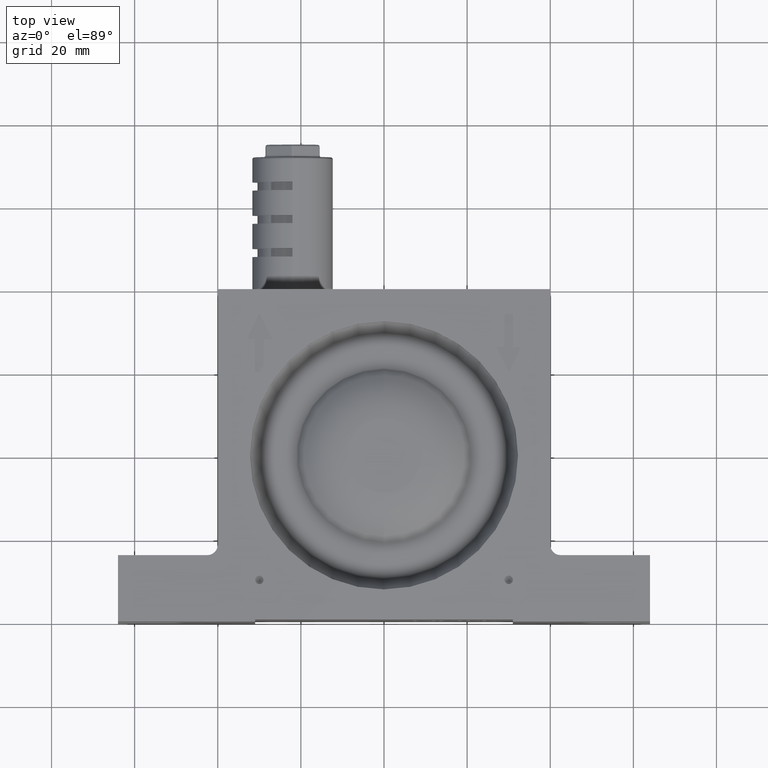
[diagram: clean part render]
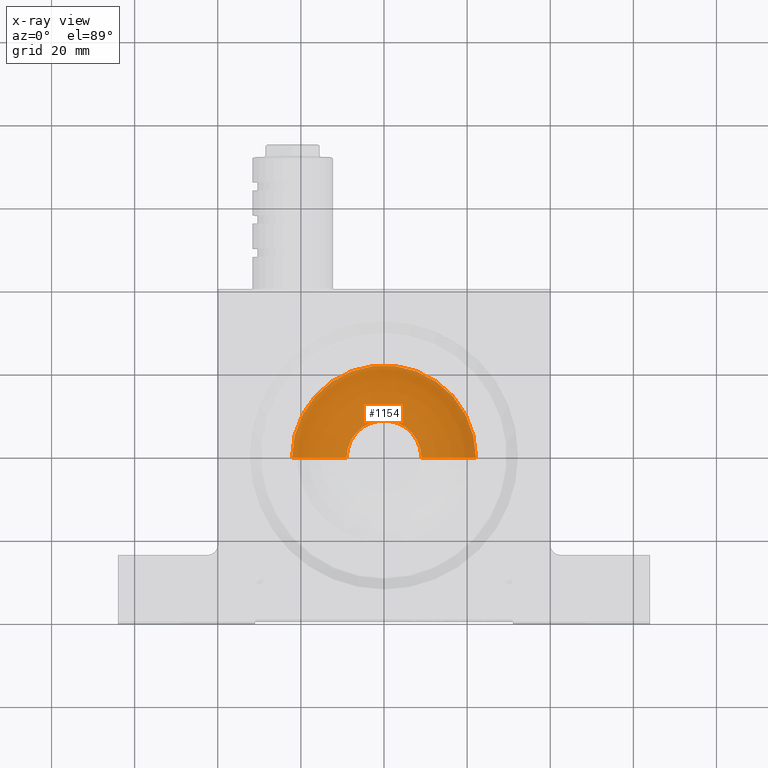
[diagram: x-ray — body ghosted, one internal face saturated and labeled with its STEP entity id]
A machine part, top view, then the same camera in x-ray: the body is ghosted and one INTERNAL B-rep face — a face not visible from any outside direction — is saturated and labeled: STEP entity #1154.
In plain terms, the highlighted toroidal blend (fillet) surface has major radius 9 mm and minor (blend) radius 16.5 mm.
Its self-contained STEP definition (entity closure, byte-faithful):
#1048 = CIRCLE ( 'NONE', #6326, 9.000000000000000000 ) ;
#1134 = CIRCLE ( 'NONE', #7056, 16.50000000000000000 ) ;
#1154 = ADVANCED_FACE ( 'NONE', ( #2869 ), #5288, .F. ) ;
#1425 = DIRECTION ( 'NONE',  ( -1.224646799147353200E-016, 1.000000000000000000, 0.0000000000000000000 ) ) ;
#1668 = DIRECTION ( 'NONE',  ( 0.0000000000000000000, 0.0000000000000000000, -1.000000000000000000 ) ) ;
#2186 = CARTESIAN_POINT ( 'NONE',  ( 0.0000000000000000000, 0.0000000000000000000, -10.00000000000000000 ) ) ;
#2476 = CARTESIAN_POINT ( 'NONE',  ( 9.000000000000000000, 1.102182119232617700E-015, -6.938893903907230000E-015 ) ) ;
#2754 = CARTESIAN_POINT ( 'NONE',  ( 0.0000000000000000000, 0.0000000000000000000, -16.50000000000000000 ) ) ;
#2837 = DIRECTION ( 'NONE',  ( -1.000000000000000000, 0.0000000000000000000, 0.0000000000000000000 ) ) ;
#2869 = FACE_OUTER_BOUND ( 'NONE', #4250, .T. ) ;
#2940 = CARTESIAN_POINT ( 'NONE',  ( -9.000000000000000000, 0.0000000000000000000, -16.50000000000000000 ) ) ;
#2954 = VERTEX_POINT ( 'NONE', #2940 ) ;
#3111 = CARTESIAN_POINT ( 'NONE',  ( -22.12440474840669300, 0.0000000000000000000, -10.00000000000000000 ) ) ;
#3345 = DIRECTION ( 'NONE',  ( 0.0000000000000000000, 0.0000000000000000000, -1.000000000000000000 ) ) ;
#3444 = DIRECTION ( 'NONE',  ( 0.0000000000000000000, 0.0000000000000000000, -1.000000000000000000 ) ) ;
#3623 = ORIENTED_EDGE ( 'NONE', *, *, #7067, .T. ) ;
#3664 = CIRCLE ( 'NONE', #6573, 22.12440474840669700 ) ;
#3787 = DIRECTION ( 'NONE',  ( 0.0000000000000000000, 0.0000000000000000000, -1.000000000000000000 ) ) ;
#3834 = CARTESIAN_POINT ( 'NONE',  ( 0.0000000000000000000, 0.0000000000000000000, -6.938893903907230000E-015 ) ) ;
#4038 = VERTEX_POINT ( 'NONE', #3111 ) ;
#4133 = AXIS2_PLACEMENT_3D ( 'NONE', #3834, #3787, #7205 ) ;
#4142 = EDGE_CURVE ( 'NONE', #4038, #2954, #5378, .T. ) ;
#4250 = EDGE_LOOP ( 'NONE', ( #6987, #4352, #4273, #3623 ) ) ;
#4273 = ORIENTED_EDGE ( 'NONE', *, *, #4142, .T. ) ;
#4352 = ORIENTED_EDGE ( 'NONE', *, *, #4894, .F. ) ;
#4662 = CARTESIAN_POINT ( 'NONE',  ( 22.12440474840669300, 2.709458145817676000E-015, -10.00000000000000000 ) ) ;
#4894 = EDGE_CURVE ( 'NONE', #4038, #6247, #3664, .T. ) ;
#5057 = DIRECTION ( 'NONE',  ( -1.000000000000000000, 0.0000000000000000000, 0.0000000000000000000 ) ) ;
#5068 = VERTEX_POINT ( 'NONE', #6993 ) ;
#5288 = TOROIDAL_SURFACE ( 'NONE', #4133, 9.000000000000000000, 16.50000000000000000 ) ;
#5378 = CIRCLE ( 'NONE', #5820, 16.50000000000000000 ) ;
#5747 = EDGE_CURVE ( 'NONE', #6247, #5068, #1134, .T. ) ;
#5820 = AXIS2_PLACEMENT_3D ( 'NONE', #6880, #7452, #3444 ) ;
#6247 = VERTEX_POINT ( 'NONE', #4662 ) ;
#6326 = AXIS2_PLACEMENT_3D ( 'NONE', #2754, #1668, #5057 ) ;
#6545 = DIRECTION ( 'NONE',  ( -1.000000000000000000, -1.224646799147353500E-016, 0.0000000000000000000 ) ) ;
#6573 = AXIS2_PLACEMENT_3D ( 'NONE', #2186, #3345, #2837 ) ;
#6880 = CARTESIAN_POINT ( 'NONE',  ( -9.000000000000000000, 0.0000000000000000000, -6.938893903907230000E-015 ) ) ;
#6987 = ORIENTED_EDGE ( 'NONE', *, *, #5747, .F. ) ;
#6993 = CARTESIAN_POINT ( 'NONE',  ( 9.000000000000000000, 1.905820132525146800E-015, -16.50000000000000000 ) ) ;
#7056 = AXIS2_PLACEMENT_3D ( 'NONE', #2476, #1425, #6545 ) ;
#7067 = EDGE_CURVE ( 'NONE', #2954, #5068, #1048, .T. ) ;
#7205 = DIRECTION ( 'NONE',  ( -1.000000000000000000, 0.0000000000000000000, 0.0000000000000000000 ) ) ;
#7452 = DIRECTION ( 'NONE',  ( -0.0000000000000000000, -1.000000000000000000, -0.0000000000000000000 ) ) ;